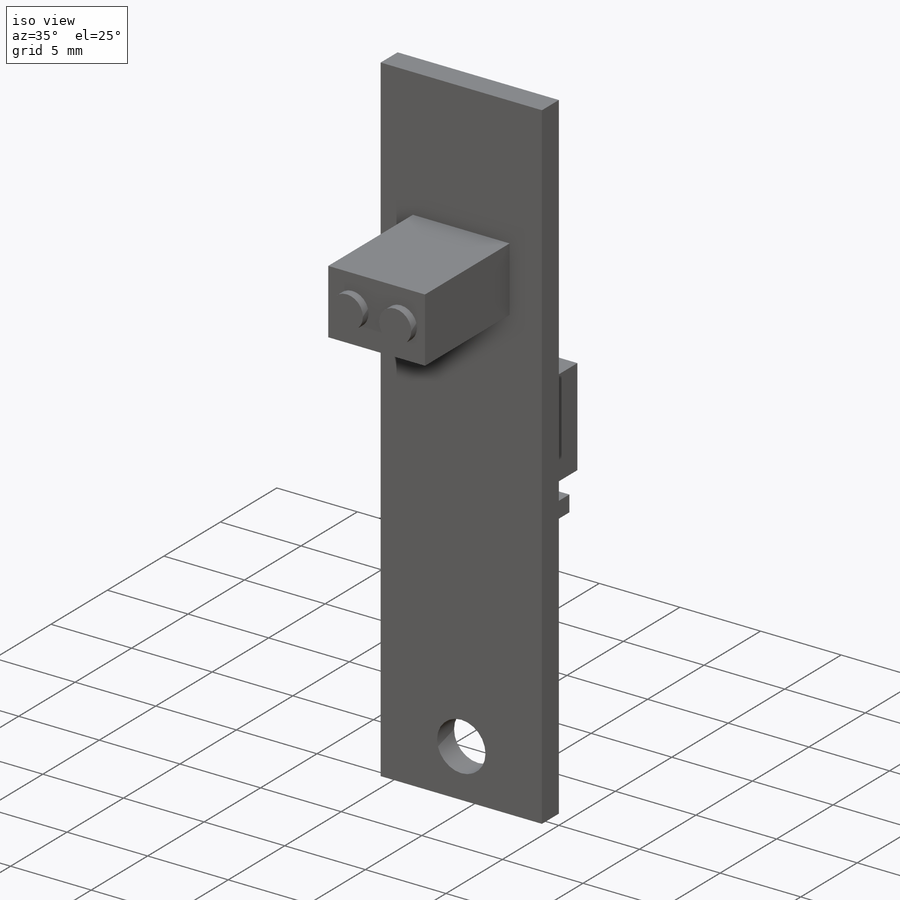
[diagram: iso view]
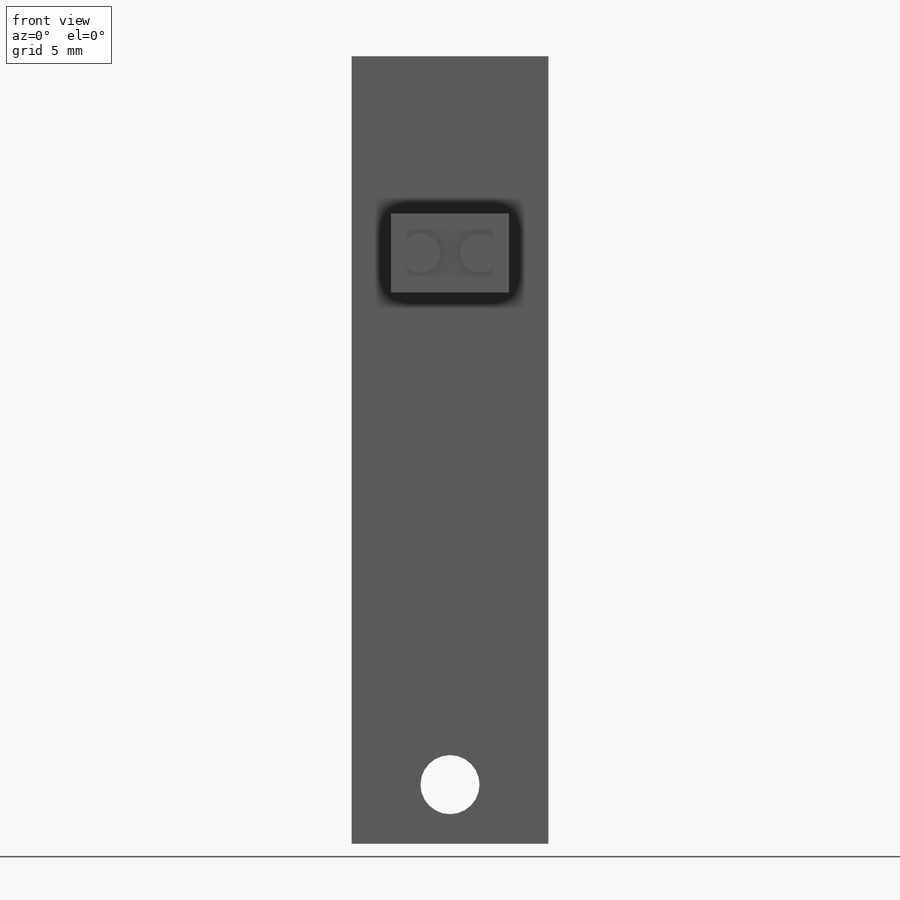
[diagram: front view]
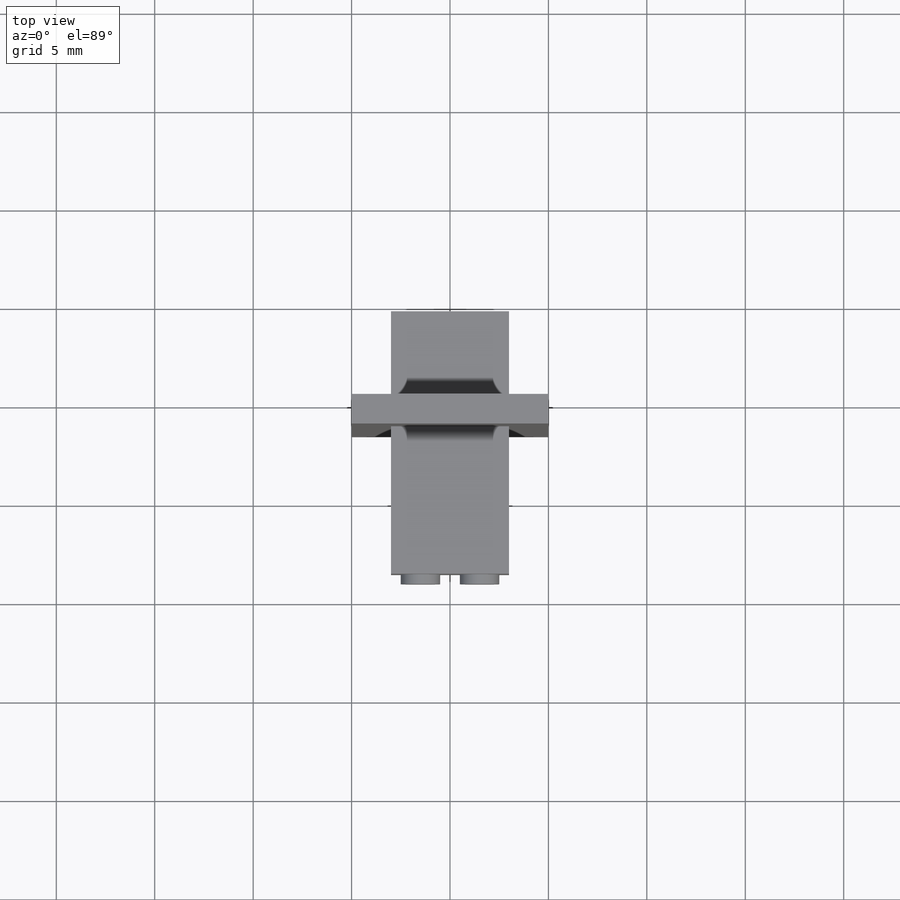
[diagram: top view]
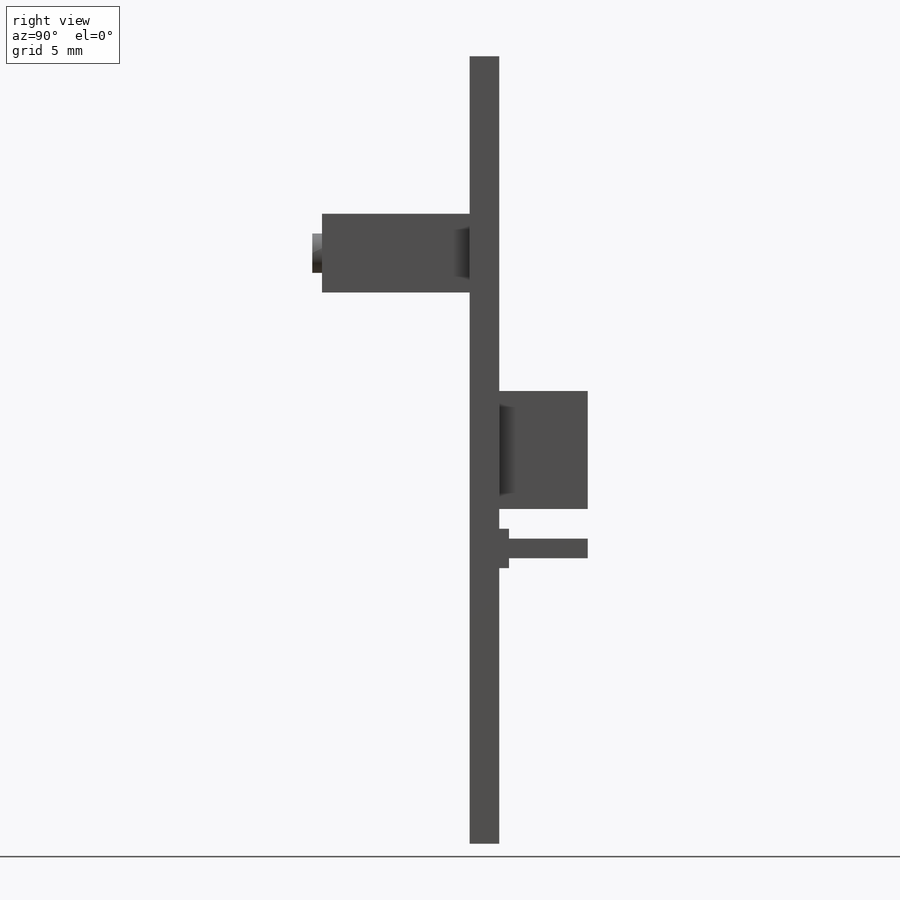
[diagram: right view]
SOLIDWORKS PART (.sldprt)
format: sldprt  version: not decoded by parser v0  size: 203,264 bytes
history: native  units: mm
features: sketch x6, extrude x5, plane x3, material x1, cut_extrude x1 (+10 scaffold rows collapsed)
feature tree (26):
  scaffold x10  (default folders/planes/origin — collapsed)
  material  "材質 <未指定>"
  plane  "前基準面"
  plane  "上基準面"
  plane  "右基準面"
  sketch  "草圖2"  dims[D4=3.0mm D1=40.0mm D2=10.0mm D3=3.0mm]
  extrude  "填料-伸長1"  Depth=1.5mm
  sketch  "草圖3"  dims[c1.D4=~3.062945mm c1.D1=20.0mm c1.D2=10.0mm c1.D3=25.0mm c2.D4=1.0mm c2.D5=2.0mm]
  extrude  "填料-伸長2"  Depth=8mm
  extrude  "填料-伸長3"  [1 undecoded]
  sketch  "草圖3<3>"  dims[D1=6.0mm]
  extrude  "填料-伸長4"  [1 undecoded]
  sketch  "草圖3<4>"  dims[D1=2.0mm]
  sketch  "草圖4"  dims[c1.D3=~0.451236mm c1.D1=2.0mm c2.D3=0.5mm c2.D4=0.5mm c2.D2=3.0 c3.D3=3.0]
  extrude  "填料-伸長5"  Depth=4mm
  sketch  "草圖5"  dims[D3=2.0mm D4=2.0mm D1=1.5mm D2=1.5mm]
  cut_extrude  "除料-伸長1"  Depth=0.5mm
decode coverage: 10 of 12 modeling features carry decoded parameters
note: ~ marks probable driven/reference dimensions
note: 2 parameter values undecoded
note: suppression state not decoded; provenance and decode notes live in map.json
